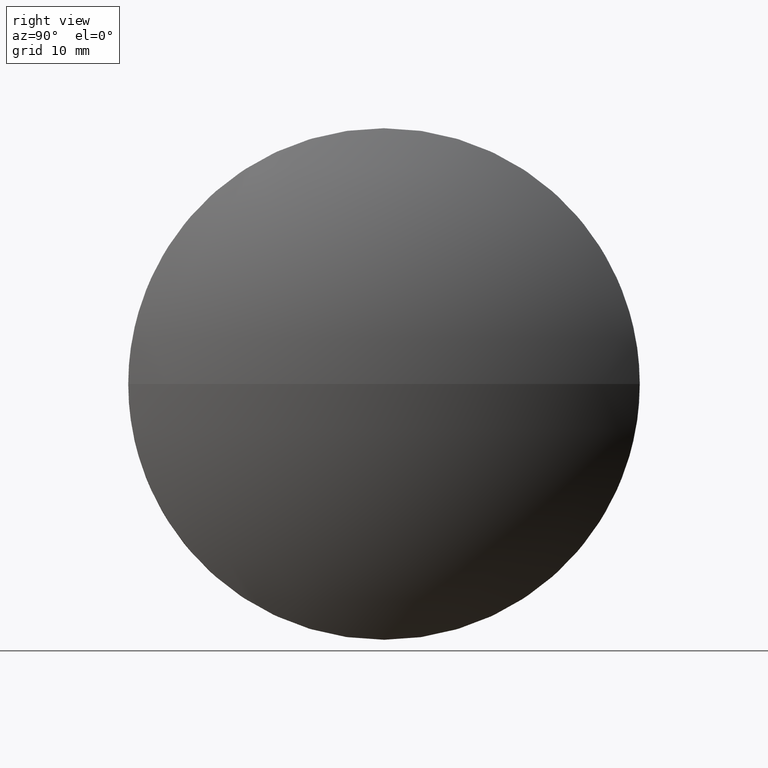
[diagram: clean part render]
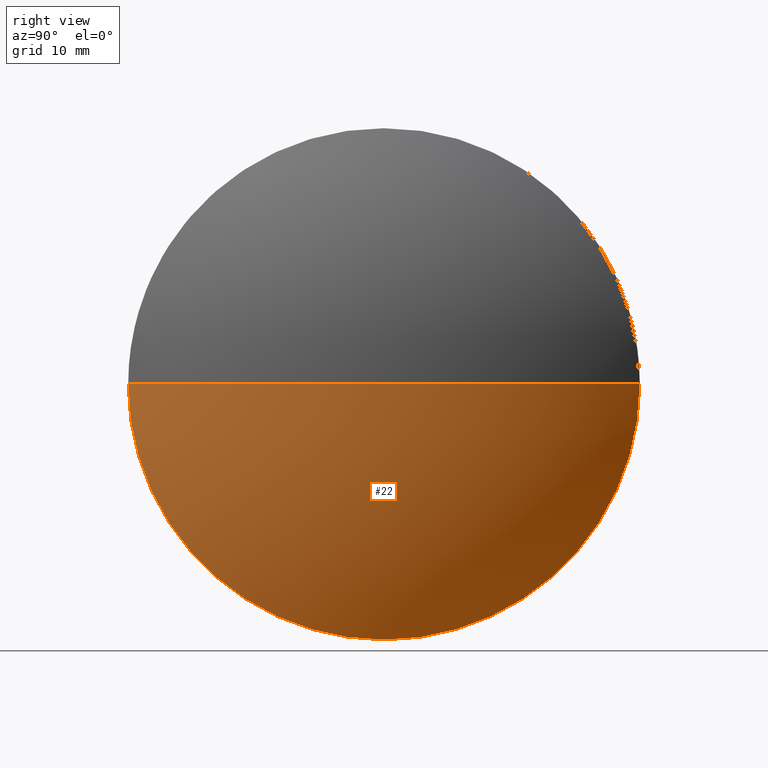
[diagram: same view with one face highlighted and labeled with its STEP entity id]
A machine part, right view. The second image highlights one B-rep face of the part: STEP entity #22.
In plain terms, the highlighted spherical surface has radius 45.7435 mm.
Its self-contained STEP definition (entity closure, byte-faithful):
#2 = ORIENTED_EDGE ( 'NONE', *, *, #173, .F. ) ;
#8 = DIRECTION ( 'NONE',  ( -0.0000000000000000000, 0.0000000000000000000, 1.000000000000000000 ) ) ;
#15 = CIRCLE ( 'NONE', #171, 25.40000000000000600 ) ;
#17 = AXIS2_PLACEMENT_3D ( 'NONE', #81, #123, #138 ) ;
#21 = DIRECTION ( 'NONE',  ( -0.0000000000000000000, 0.0000000000000000000, -1.000000000000000000 ) ) ;
#22 = ADVANCED_FACE ( 'NONE', ( #93 ), #74, .T. ) ;
#24 = CARTESIAN_POINT ( 'NONE',  ( 235.0208200792423800, 130.4671098528243900, 0.0000000000000000000 ) ) ;
#32 = CIRCLE ( 'NONE', #77, 25.40000000000000600 ) ;
#42 = DIRECTION ( 'NONE',  ( 0.0000000000000000000, 0.0000000000000000000, 1.000000000000000000 ) ) ;
#50 = EDGE_CURVE ( 'NONE', #118, #78, #56, .T. ) ;
#54 = EDGE_LOOP ( 'NONE', ( #106, #88, #63, #2 ) ) ;
#56 = CIRCLE ( 'NONE', #17, 45.74350649350655800 ) ;
#58 = AXIS2_PLACEMENT_3D ( 'NONE', #175, #21, #108 ) ;
#63 = ORIENTED_EDGE ( 'NONE', *, *, #166, .F. ) ;
#68 = CARTESIAN_POINT ( 'NONE',  ( 235.0208200792423800, 105.0671098528243900, -3.110602869834276900E-015 ) ) ;
#72 = CIRCLE ( 'NONE', #151, 45.74350649350655800 ) ;
#74 = SPHERICAL_SURFACE ( 'NONE', #58, 45.74350649350655800 ) ;
#77 = AXIS2_PLACEMENT_3D ( 'NONE', #24, #125, #42 ) ;
#78 = VERTEX_POINT ( 'NONE', #68 ) ;
#81 = CARTESIAN_POINT ( 'NONE',  ( 196.9773135857358000, 130.4671098528243900, 0.0000000000000000000 ) ) ;
#88 = ORIENTED_EDGE ( 'NONE', *, *, #50, .T. ) ;
#93 = FACE_OUTER_BOUND ( 'NONE', #54, .T. ) ;
#97 = CARTESIAN_POINT ( 'NONE',  ( 242.7208200792423700, 130.4671098528243900, 0.0000000000000000000 ) ) ;
#106 = ORIENTED_EDGE ( 'NONE', *, *, #114, .F. ) ;
#108 = DIRECTION ( 'NONE',  ( 0.0000000000000000000, 1.000000000000000000, 0.0000000000000000000 ) ) ;
#109 = VERTEX_POINT ( 'NONE', #163 ) ;
#111 = CARTESIAN_POINT ( 'NONE',  ( 196.9773135857358000, 130.4671098528243900, 0.0000000000000000000 ) ) ;
#114 = EDGE_CURVE ( 'NONE', #118, #148, #72, .T. ) ;
#118 = VERTEX_POINT ( 'NONE', #97 ) ;
#123 = DIRECTION ( 'NONE',  ( 0.0000000000000000000, 1.224646799147353200E-016, -1.000000000000000000 ) ) ;
#125 = DIRECTION ( 'NONE',  ( -1.000000000000000000, -0.0000000000000000000, -0.0000000000000000000 ) ) ;
#127 = DIRECTION ( 'NONE',  ( 1.000000000000000000, 0.0000000000000000000, 0.0000000000000000000 ) ) ;
#138 = DIRECTION ( 'NONE',  ( 0.0000000000000000000, 1.000000000000000000, 1.224646799147353200E-016 ) ) ;
#148 = VERTEX_POINT ( 'NONE', #168 ) ;
#151 = AXIS2_PLACEMENT_3D ( 'NONE', #111, #8, #127 ) ;
#153 = CARTESIAN_POINT ( 'NONE',  ( 235.0208200792423800, 130.4671098528243900, 0.0000000000000000000 ) ) ;
#163 = CARTESIAN_POINT ( 'NONE',  ( 235.0208200792423800, 130.4671098528243900, -25.40000000000000600 ) ) ;
#166 = EDGE_CURVE ( 'NONE', #109, #78, #32, .T. ) ;
#167 = DIRECTION ( 'NONE',  ( 0.0000000000000000000, 0.0000000000000000000, 1.000000000000000000 ) ) ;
#168 = CARTESIAN_POINT ( 'NONE',  ( 235.0208200792423800, 155.8671098528244000, 0.0000000000000000000 ) ) ;
#171 = AXIS2_PLACEMENT_3D ( 'NONE', #153, #177, #167 ) ;
#173 = EDGE_CURVE ( 'NONE', #148, #109, #15, .T. ) ;
#175 = CARTESIAN_POINT ( 'NONE',  ( 196.9773135857358000, 130.4671098528243900, 0.0000000000000000000 ) ) ;
#177 = DIRECTION ( 'NONE',  ( -1.000000000000000000, -0.0000000000000000000, -0.0000000000000000000 ) ) ;